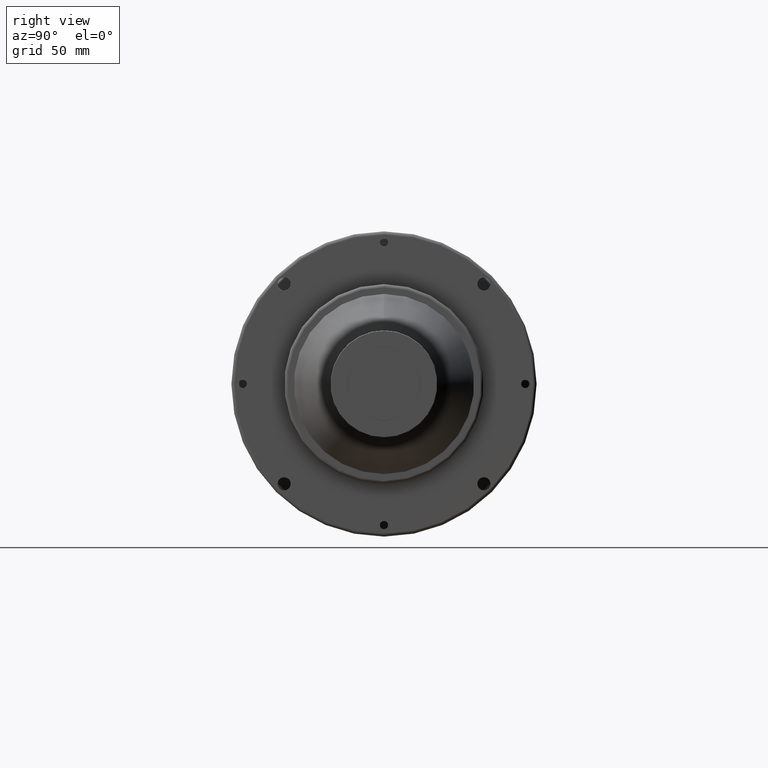
[diagram: clean part render]
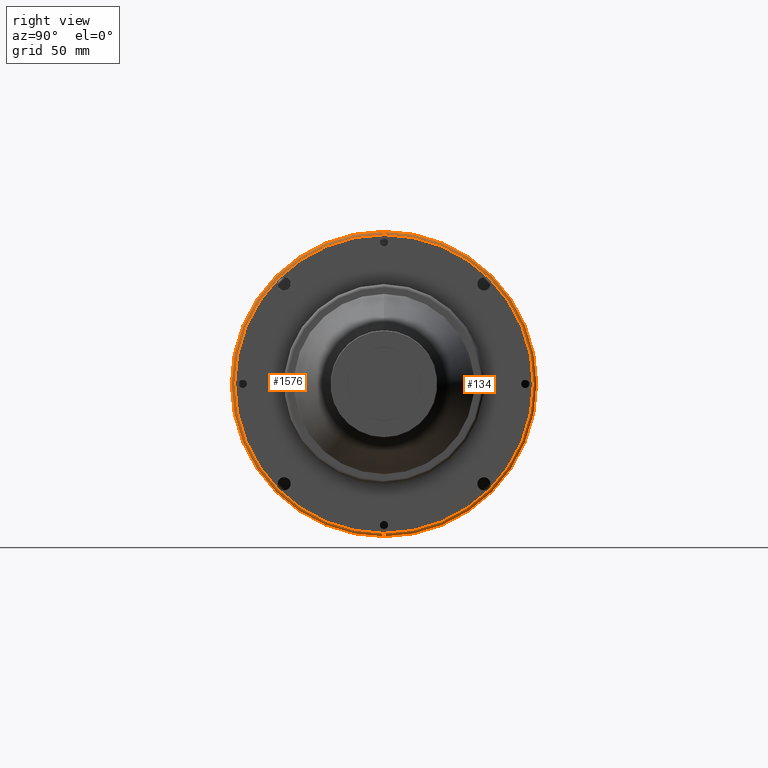
[diagram: same view with one multi-face feature highlighted, each face labeled with its STEP entity id]
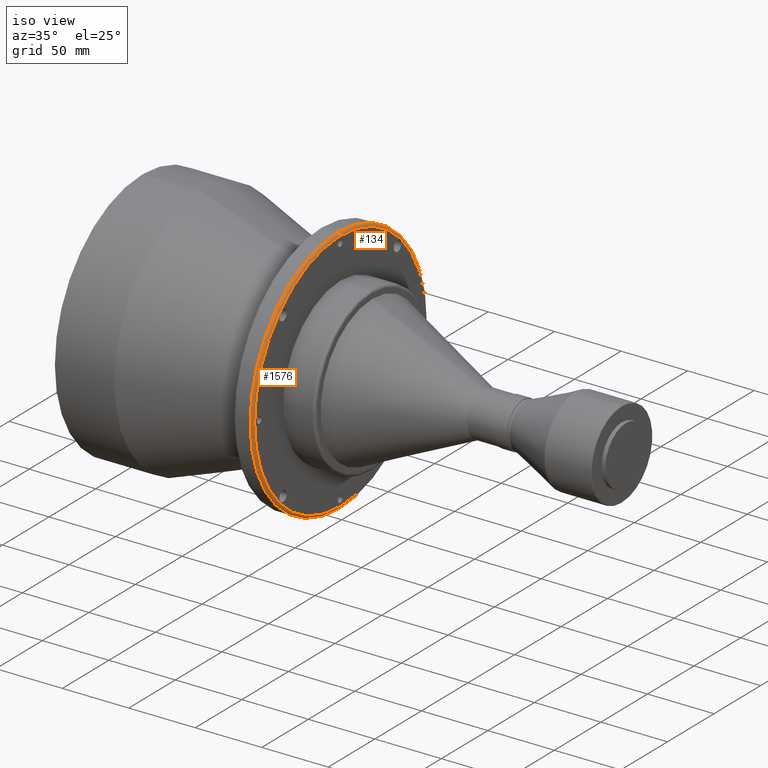
[diagram: same view with one multi-face feature highlighted, each face labeled with its STEP entity id]
A machine part, right view. The highlighted faces form ONE feature: a constant-radius fillet chain: 2 tangent blend faces with common blend radius 2 mm. The faces share edges in the B-rep.
A second angle (iso view) of the same feature is appended — it is thin or edge-on in the first view.
Their STEP definitions:
[1] entity #1576 (Torus):
#77 = DIRECTION ( 'NONE',  ( 0.0000000000000000000, 0.0000000000000000000, -1.000000000000000000 ) ) ;
#146 = AXIS2_PLACEMENT_3D ( 'NONE', #1049, #1167, #1318 ) ;
#149 = VERTEX_POINT ( 'NONE', #766 ) ;
#166 = EDGE_CURVE ( 'NONE', #149, #682, #1751, .T. ) ;
#187 = CARTESIAN_POINT ( 'NONE',  ( 147.0000000000000300, 0.0000000000000000000, 0.0000000000000000000 ) ) ;
#209 = EDGE_CURVE ( 'NONE', #1052, #1340, #279, .T. ) ;
#279 = CIRCLE ( 'NONE', #146, 92.00000000000000000 ) ;
#358 = FACE_OUTER_BOUND ( 'NONE', #1247, .T. ) ;
#532 = CARTESIAN_POINT ( 'NONE',  ( 147.0000000000000300, 0.0000000000000000000, 0.0000000000000000000 ) ) ;
#539 = CARTESIAN_POINT ( 'NONE',  ( 149.0000000000000300, 0.0000000000000000000, 92.00000000000000000 ) ) ;
#625 = AXIS2_PLACEMENT_3D ( 'NONE', #656, #1667, #77 ) ;
#633 = ORIENTED_EDGE ( 'NONE', *, *, #209, .T. ) ;
#656 = CARTESIAN_POINT ( 'NONE',  ( 147.0000000000000300, 0.0000000000000000000, 92.00000000000000000 ) ) ;
#682 = VERTEX_POINT ( 'NONE', #1277 ) ;
#766 = CARTESIAN_POINT ( 'NONE',  ( 147.0000000000000300, 1.151167991198512000E-014, -94.00000000000000000 ) ) ;
#944 = EDGE_CURVE ( 'NONE', #1340, #682, #1626, .T. ) ;
#1006 = CARTESIAN_POINT ( 'NONE',  ( 147.0000000000000300, 1.126675055215564900E-014, -92.00000000000000000 ) ) ;
#1008 = AXIS2_PLACEMENT_3D ( 'NONE', #1006, #1023, #1737 ) ;
#1023 = DIRECTION ( 'NONE',  ( -0.0000000000000000000, 1.000000000000000000, 1.224646799147353200E-016 ) ) ;
#1049 = CARTESIAN_POINT ( 'NONE',  ( 149.0000000000000300, 0.0000000000000000000, 0.0000000000000000000 ) ) ;
#1052 = VERTEX_POINT ( 'NONE', #1703 ) ;
#1067 = CIRCLE ( 'NONE', #1008, 2.000000000000001800 ) ;
#1106 = TOROIDAL_SURFACE ( 'NONE', #1826, 92.00000000000000000, 2.000000000000001800 ) ;
#1130 = ORIENTED_EDGE ( 'NONE', *, *, #944, .T. ) ;
#1167 = DIRECTION ( 'NONE',  ( -1.000000000000000000, -0.0000000000000000000, -0.0000000000000000000 ) ) ;
#1187 = DIRECTION ( 'NONE',  ( -1.000000000000000000, -0.0000000000000000000, -0.0000000000000000000 ) ) ;
#1247 = EDGE_LOOP ( 'NONE', ( #1857, #633, #1130, #1508 ) ) ;
#1274 = DIRECTION ( 'NONE',  ( 0.0000000000000000000, 0.0000000000000000000, 1.000000000000000000 ) ) ;
#1277 = CARTESIAN_POINT ( 'NONE',  ( 147.0000000000000300, 0.0000000000000000000, 94.00000000000000000 ) ) ;
#1318 = DIRECTION ( 'NONE',  ( 0.0000000000000000000, 0.0000000000000000000, 1.000000000000000000 ) ) ;
#1323 = DIRECTION ( 'NONE',  ( 0.0000000000000000000, 0.0000000000000000000, 1.000000000000000000 ) ) ;
#1340 = VERTEX_POINT ( 'NONE', #539 ) ;
#1364 = EDGE_CURVE ( 'NONE', #1052, #149, #1067, .T. ) ;
#1508 = ORIENTED_EDGE ( 'NONE', *, *, #166, .F. ) ;
#1543 = DIRECTION ( 'NONE',  ( -1.000000000000000000, -0.0000000000000000000, -0.0000000000000000000 ) ) ;
#1576 = ADVANCED_FACE ( 'NONE', ( #358 ), #1106, .T. ) ;
#1626 = CIRCLE ( 'NONE', #625, 2.000000000000001800 ) ;
#1667 = DIRECTION ( 'NONE',  ( 0.0000000000000000000, -1.000000000000000000, 0.0000000000000000000 ) ) ;
#1672 = AXIS2_PLACEMENT_3D ( 'NONE', #532, #1543, #1274 ) ;
#1703 = CARTESIAN_POINT ( 'NONE',  ( 149.0000000000000300, 1.138921523207038500E-014, -92.00000000000000000 ) ) ;
#1737 = DIRECTION ( 'NONE',  ( 0.0000000000000000000, -1.224646799147349500E-016, 1.000000000000000000 ) ) ;
#1751 = CIRCLE ( 'NONE', #1672, 94.00000000000000000 ) ;
#1826 = AXIS2_PLACEMENT_3D ( 'NONE', #187, #1187, #1323 ) ;
#1857 = ORIENTED_EDGE ( 'NONE', *, *, #1364, .F. ) ;
[2] entity #134 (Torus):
#22 = FACE_OUTER_BOUND ( 'NONE', #1012, .T. ) ;
#43 = EDGE_CURVE ( 'NONE', #1340, #1052, #109, .T. ) ;
#77 = DIRECTION ( 'NONE',  ( 0.0000000000000000000, 0.0000000000000000000, -1.000000000000000000 ) ) ;
#105 = DIRECTION ( 'NONE',  ( -1.000000000000000000, -0.0000000000000000000, -0.0000000000000000000 ) ) ;
#109 = CIRCLE ( 'NONE', #409, 92.00000000000000000 ) ;
#125 = CARTESIAN_POINT ( 'NONE',  ( 147.0000000000000300, 0.0000000000000000000, 0.0000000000000000000 ) ) ;
#134 = ADVANCED_FACE ( 'NONE', ( #22 ), #648, .T. ) ;
#149 = VERTEX_POINT ( 'NONE', #766 ) ;
#242 = ORIENTED_EDGE ( 'NONE', *, *, #1266, .F. ) ;
#304 = DIRECTION ( 'NONE',  ( 0.0000000000000000000, 0.0000000000000000000, 1.000000000000000000 ) ) ;
#409 = AXIS2_PLACEMENT_3D ( 'NONE', #901, #1460, #304 ) ;
#477 = ORIENTED_EDGE ( 'NONE', *, *, #43, .T. ) ;
#537 = ORIENTED_EDGE ( 'NONE', *, *, #944, .F. ) ;
#539 = CARTESIAN_POINT ( 'NONE',  ( 149.0000000000000300, 0.0000000000000000000, 92.00000000000000000 ) ) ;
#610 = DIRECTION ( 'NONE',  ( -1.000000000000000000, -0.0000000000000000000, -0.0000000000000000000 ) ) ;
#625 = AXIS2_PLACEMENT_3D ( 'NONE', #656, #1667, #77 ) ;
#648 = TOROIDAL_SURFACE ( 'NONE', #1095, 92.00000000000000000, 2.000000000000001800 ) ;
#656 = CARTESIAN_POINT ( 'NONE',  ( 147.0000000000000300, 0.0000000000000000000, 92.00000000000000000 ) ) ;
#682 = VERTEX_POINT ( 'NONE', #1277 ) ;
#766 = CARTESIAN_POINT ( 'NONE',  ( 147.0000000000000300, 1.151167991198512000E-014, -94.00000000000000000 ) ) ;
#901 = CARTESIAN_POINT ( 'NONE',  ( 149.0000000000000300, 0.0000000000000000000, 0.0000000000000000000 ) ) ;
#944 = EDGE_CURVE ( 'NONE', #1340, #682, #1626, .T. ) ;
#1006 = CARTESIAN_POINT ( 'NONE',  ( 147.0000000000000300, 1.126675055215564900E-014, -92.00000000000000000 ) ) ;
#1008 = AXIS2_PLACEMENT_3D ( 'NONE', #1006, #1023, #1737 ) ;
#1012 = EDGE_LOOP ( 'NONE', ( #477, #1292, #242, #537 ) ) ;
#1023 = DIRECTION ( 'NONE',  ( -0.0000000000000000000, 1.000000000000000000, 1.224646799147353200E-016 ) ) ;
#1033 = CARTESIAN_POINT ( 'NONE',  ( 147.0000000000000300, 0.0000000000000000000, 0.0000000000000000000 ) ) ;
#1052 = VERTEX_POINT ( 'NONE', #1703 ) ;
#1067 = CIRCLE ( 'NONE', #1008, 2.000000000000001800 ) ;
#1095 = AXIS2_PLACEMENT_3D ( 'NONE', #1033, #610, #1760 ) ;
#1266 = EDGE_CURVE ( 'NONE', #682, #149, #1775, .T. ) ;
#1277 = CARTESIAN_POINT ( 'NONE',  ( 147.0000000000000300, 0.0000000000000000000, 94.00000000000000000 ) ) ;
#1292 = ORIENTED_EDGE ( 'NONE', *, *, #1364, .T. ) ;
#1340 = VERTEX_POINT ( 'NONE', #539 ) ;
#1364 = EDGE_CURVE ( 'NONE', #1052, #149, #1067, .T. ) ;
#1424 = AXIS2_PLACEMENT_3D ( 'NONE', #125, #105, #1546 ) ;
#1460 = DIRECTION ( 'NONE',  ( -1.000000000000000000, -0.0000000000000000000, -0.0000000000000000000 ) ) ;
#1546 = DIRECTION ( 'NONE',  ( 0.0000000000000000000, 0.0000000000000000000, 1.000000000000000000 ) ) ;
#1626 = CIRCLE ( 'NONE', #625, 2.000000000000001800 ) ;
#1667 = DIRECTION ( 'NONE',  ( 0.0000000000000000000, -1.000000000000000000, 0.0000000000000000000 ) ) ;
#1703 = CARTESIAN_POINT ( 'NONE',  ( 149.0000000000000300, 1.138921523207038500E-014, -92.00000000000000000 ) ) ;
#1737 = DIRECTION ( 'NONE',  ( 0.0000000000000000000, -1.224646799147349500E-016, 1.000000000000000000 ) ) ;
#1760 = DIRECTION ( 'NONE',  ( 0.0000000000000000000, 0.0000000000000000000, 1.000000000000000000 ) ) ;
#1775 = CIRCLE ( 'NONE', #1424, 94.00000000000000000 ) ;